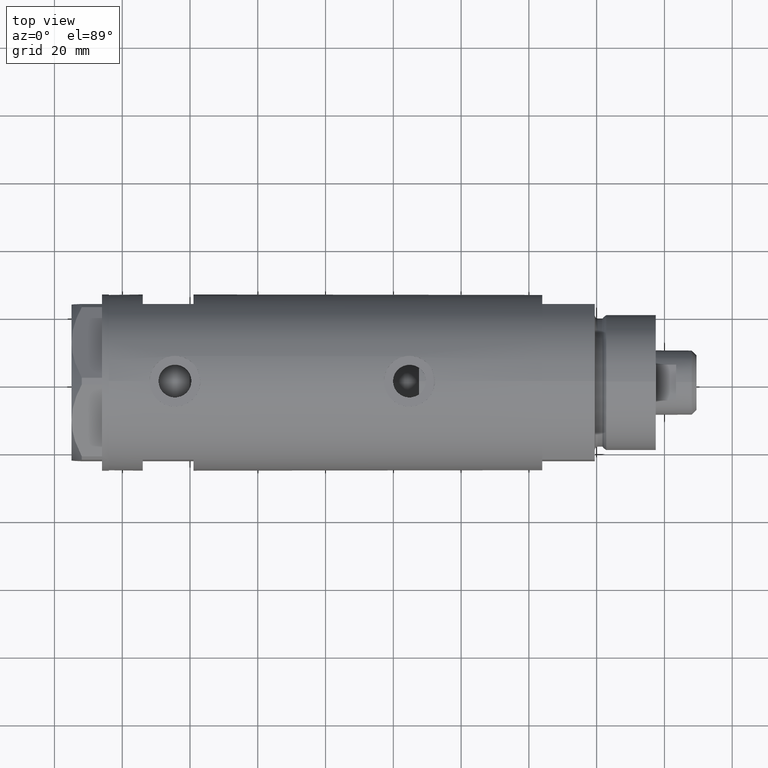
[diagram: clean part render]
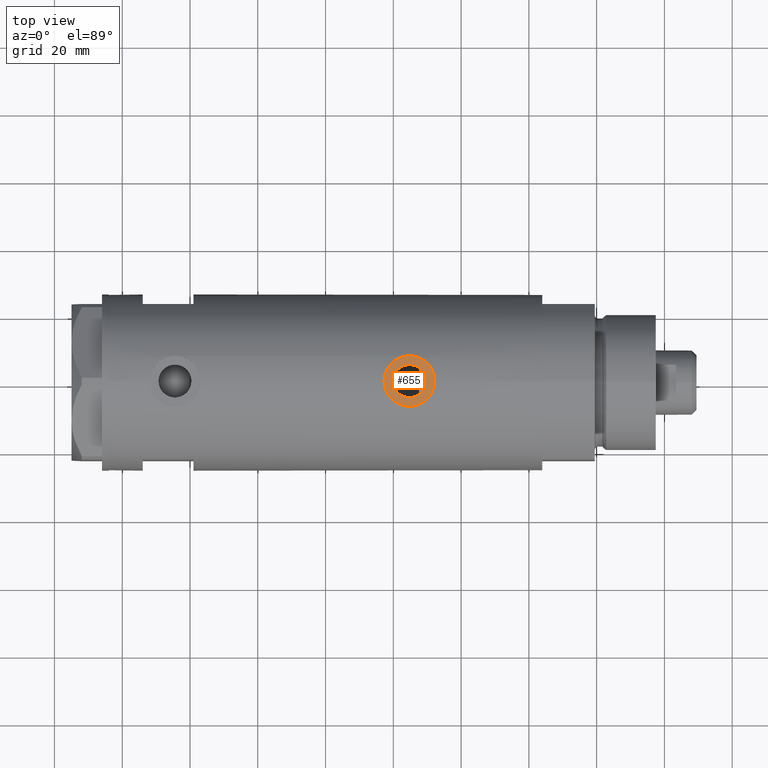
[diagram: same view with one face highlighted and labeled with its STEP entity id]
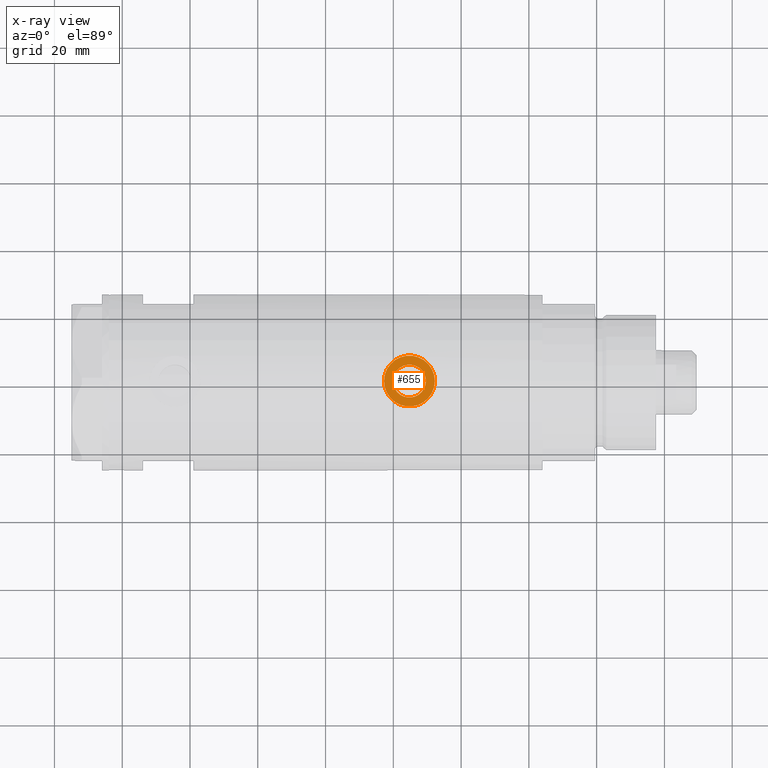
[diagram: x-ray of the same camera — body ghosted, the highlighted face saturated]
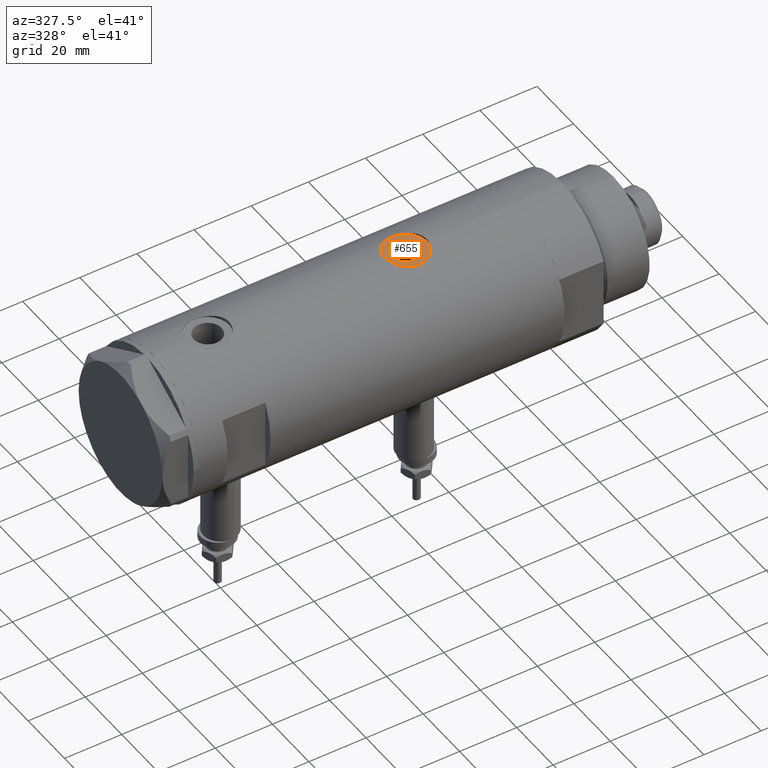
[diagram: same view with one face highlighted and labeled with its STEP entity id]
A machine part, top view. The second image highlights one B-rep face of the part: STEP entity #655.
The next image is the same camera in x-ray: the body ghosted, the highlighted face saturated — about 0% of this face is hidden behind the body in this view.
A second angle (auxiliary view) of the same face is appended — the face is thin or edge-on in the first view.
In plain terms, the highlighted planar face has unit normal (0, 0, 1).
Its self-contained STEP definition (entity closure, byte-faithful):
#10 = DIRECTION ( 'NONE',  ( 0.000000000000000000, 0.000000000000000000, -1.000000000000000000 ) ) ;
#241 = FACE_BOUND ( 'NONE', #3947, .T. ) ;
#275 = CARTESIAN_POINT ( 'NONE',  ( 24.80000000000000426, 0.000000000000000000, -24.75000000000000000 ) ) ;
#367 = EDGE_CURVE ( 'NONE', #3055, #898, #4716, .T. ) ;
#427 = CARTESIAN_POINT ( 'NONE',  ( 24.80000000000000426, 0.000000000000000000, -24.75000000000000000 ) ) ;
#466 = CARTESIAN_POINT ( 'NONE',  ( 24.80000000000000426, 0.000000000000000000, -24.75000000000000000 ) ) ;
#655 = ADVANCED_FACE ( 'NONE', ( #241, #4134 ), #4685, .T. ) ;
#867 = CARTESIAN_POINT ( 'NONE',  ( 24.80000000000000426, 0.000000000000000000, -32.25000000000000000 ) ) ;
#898 = VERTEX_POINT ( 'NONE', #914 ) ;
#914 = CARTESIAN_POINT ( 'NONE',  ( 24.80000000000000426, 5.957906677851871624E-16, -19.88500000000000156 ) ) ;
#1130 = DIRECTION ( 'NONE',  ( 0.000000000000000000, 0.000000000000000000, -1.000000000000000000 ) ) ;
#1563 = CIRCLE ( 'NONE', #2817, 7.500000000000000000 ) ;
#1735 = DIRECTION ( 'NONE',  ( 0.000000000000000000, 0.000000000000000000, -1.000000000000000000 ) ) ;
#1797 = CIRCLE ( 'NONE', #5678, 4.865000000000001101 ) ;
#1897 = DIRECTION ( 'NONE',  ( 0.000000000000000000, 0.000000000000000000, -1.000000000000000000 ) ) ;
#1901 = VERTEX_POINT ( 'NONE', #867 ) ;
#1958 = CARTESIAN_POINT ( 'NONE',  ( 24.80000000000000426, 9.184850993605147944E-16, -17.25000000000000000 ) ) ;
#1959 = AXIS2_PLACEMENT_3D ( 'NONE', #275, #4654, #1735 ) ;
#2679 = ORIENTED_EDGE ( 'NONE', *, *, #3527, .T. ) ;
#2704 = DIRECTION ( 'NONE',  ( 1.000000000000000000, 0.000000000000000000, 0.000000000000000000 ) ) ;
#2817 = AXIS2_PLACEMENT_3D ( 'NONE', #466, #3397, #10 ) ;
#2925 = AXIS2_PLACEMENT_3D ( 'NONE', #427, #4322, #1897 ) ;
#3055 = VERTEX_POINT ( 'NONE', #4911 ) ;
#3134 = ORIENTED_EDGE ( 'NONE', *, *, #367, .F. ) ;
#3397 = DIRECTION ( 'NONE',  ( 1.000000000000000000, 0.000000000000000000, 0.000000000000000000 ) ) ;
#3527 = EDGE_CURVE ( 'NONE', #1901, #5403, #1563, .T. ) ;
#3819 = DIRECTION ( 'NONE',  ( 0.000000000000000000, 0.000000000000000000, -1.000000000000000000 ) ) ;
#3947 = EDGE_LOOP ( 'NONE', ( #3134, #5354 ) ) ;
#4134 = FACE_OUTER_BOUND ( 'NONE', #4574, .T. ) ;
#4237 = DIRECTION ( 'NONE',  ( 1.000000000000000000, 0.000000000000000000, 0.000000000000000000 ) ) ;
#4322 = DIRECTION ( 'NONE',  ( 1.000000000000000000, 0.000000000000000000, 0.000000000000000000 ) ) ;
#4402 = AXIS2_PLACEMENT_3D ( 'NONE', #4761, #4237, #3819 ) ;
#4574 = EDGE_LOOP ( 'NONE', ( #2679, #5731 ) ) ;
#4654 = DIRECTION ( 'NONE',  ( 1.000000000000000000, 0.000000000000000000, 0.000000000000000000 ) ) ;
#4685 = PLANE ( 'NONE',  #1959 ) ;
#4716 = CIRCLE ( 'NONE', #4402, 4.865000000000001101 ) ;
#4761 = CARTESIAN_POINT ( 'NONE',  ( 24.80000000000000426, 0.000000000000000000, -24.75000000000000000 ) ) ;
#4911 = CARTESIAN_POINT ( 'NONE',  ( 24.80000000000000426, 0.000000000000000000, -29.61500000000000199 ) ) ;
#5169 = EDGE_CURVE ( 'NONE', #898, #3055, #1797, .T. ) ;
#5354 = ORIENTED_EDGE ( 'NONE', *, *, #5169, .F. ) ;
#5403 = VERTEX_POINT ( 'NONE', #1958 ) ;
#5511 = CARTESIAN_POINT ( 'NONE',  ( 24.80000000000000426, 0.000000000000000000, -24.75000000000000000 ) ) ;
#5571 = CIRCLE ( 'NONE', #2925, 7.500000000000000000 ) ;
#5678 = AXIS2_PLACEMENT_3D ( 'NONE', #5511, #2704, #1130 ) ;
#5731 = ORIENTED_EDGE ( 'NONE', *, *, #5991, .T. ) ;
#5991 = EDGE_CURVE ( 'NONE', #5403, #1901, #5571, .T. ) ;